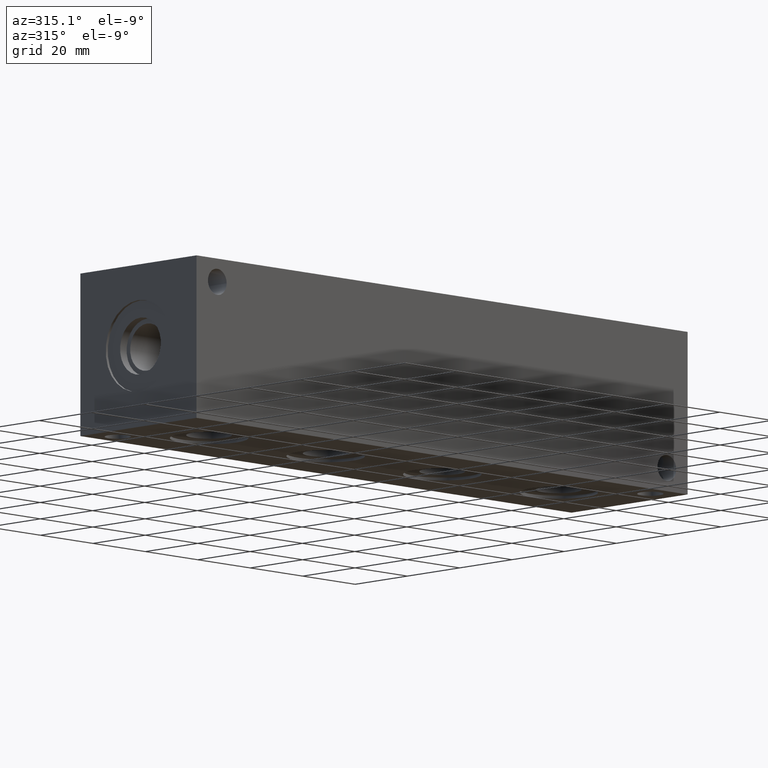
[diagram: clean part render]
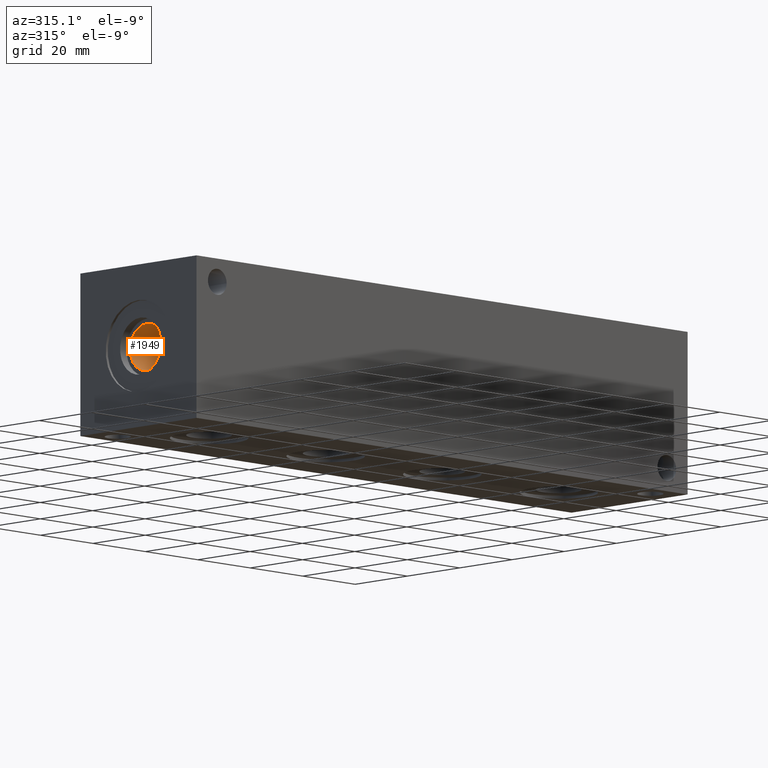
[diagram: same view with one face highlighted and labeled with its STEP entity id]
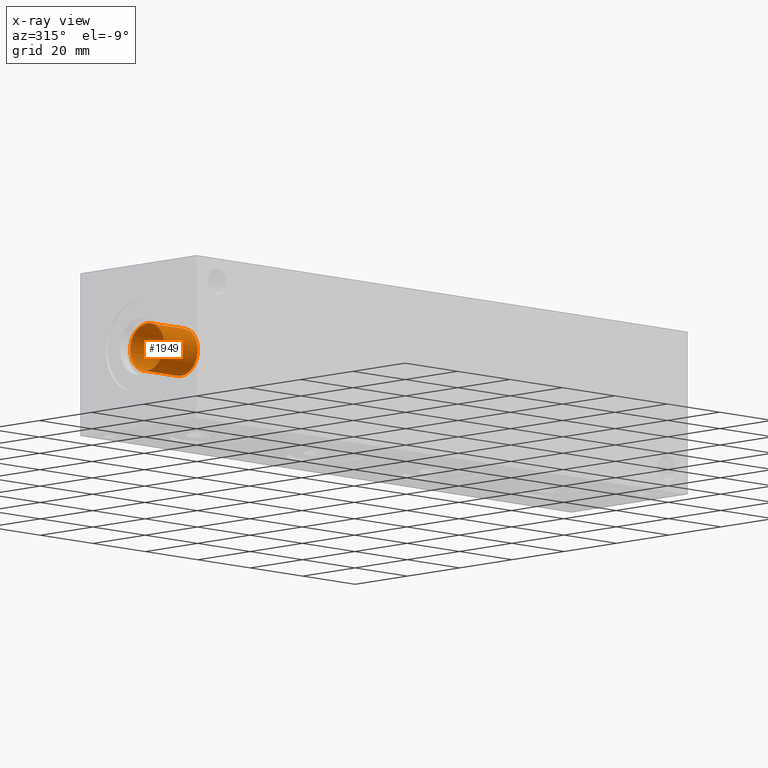
[diagram: x-ray of the same camera — body ghosted, the highlighted face saturated]
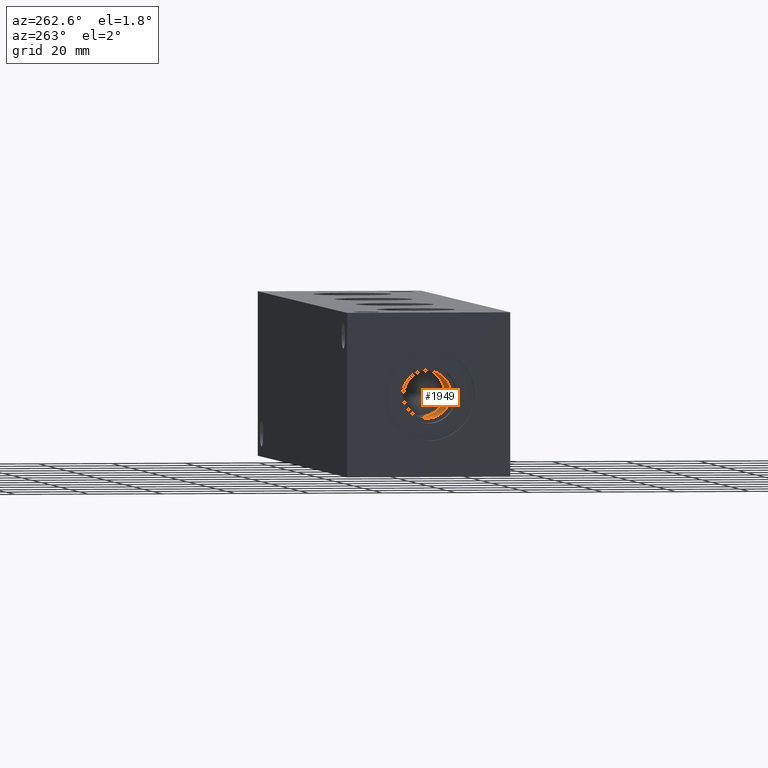
[diagram: same view with one face highlighted and labeled with its STEP entity id]
A machine part, auxiliary view. The second image highlights one B-rep face of the part: STEP entity #1949.
The next image is the same camera in x-ray: the body ghosted, the highlighted face saturated — about 0% of this face is hidden behind the body in this view.
A second angle (auxiliary view) of the same face is appended — the face is thin or edge-on in the first view.
In plain terms, the highlighted cylindrical surface (bore or boss wall) has radius 6.45 mm, axis along (-1, 0, 0).
Its self-contained STEP definition (entity closure, byte-faithful):
#1915=CARTESIAN_POINT('',(16.265890800000001,22.225000000000001,28.675000000000001));
#1916=VERTEX_POINT('',#1915);
#1917=CARTESIAN_POINT('',(16.265890800000001,22.225000000000001,22.225000000000001));
#1918=DIRECTION('',(-1.0,0.0,0.0));
#1919=DIRECTION('',(0.0,0.0,1.0));
#1920=AXIS2_PLACEMENT_3D('',#1917,#1918,#1919);
#1921=CIRCLE('',#1920,6.450000000000000);
#1922=EDGE_CURVE('',#1916,#1916,#1921,.T.);
#1930=CARTESIAN_POINT('',(9.771245400000002,22.225000000000001,22.225000000000001));
#1931=DIRECTION('',(-1.0,0.0,0.0));
#1932=DIRECTION('',(0.0,0.0,1.0));
#1933=AXIS2_PLACEMENT_3D('',#1930,#1931,#1932);
#1934=CYLINDRICAL_SURFACE('',#1933,6.450000000000000);
#1935=CARTESIAN_POINT('',(3.276600000000001,22.225000000000001,28.675000000000001));
#1936=VERTEX_POINT('',#1935);
#1937=CARTESIAN_POINT('',(3.276600000000001,22.225000000000001,22.225000000000001));
#1938=DIRECTION('',(-1.0,0.0,0.0));
#1939=DIRECTION('',(0.0,0.0,1.0));
#1940=AXIS2_PLACEMENT_3D('',#1937,#1938,#1939);
#1941=CIRCLE('',#1940,6.450000000000000);
#1942=EDGE_CURVE('',#1936,#1936,#1941,.T.);
#1943=ORIENTED_EDGE('',*,*,#1942,.T.);
#1944=EDGE_LOOP('',(#1943));
#1945=FACE_OUTER_BOUND('',#1944,.T.);
#1946=ORIENTED_EDGE('',*,*,#1922,.F.);
#1947=EDGE_LOOP('',(#1946));
#1948=FACE_BOUND('',#1947,.T.);
#1949=ADVANCED_FACE('',(#1945,#1948),#1934,.F.);